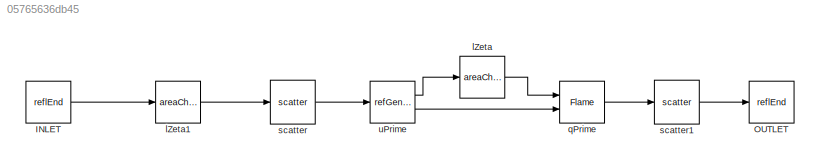
MODEL slx_05765636db45
KIND model
CONFIG AbsTol = auto
CONFIG EnableMultiTasking = on
CONFIG FixedStep = 1.0
CONFIG MaxStep = auto
CONFIG MinStep = auto
CONFIG RelTol = 1e-3
CONFIG SampleTimeConstraint = Unconstrained
CONFIG Solver = FixedStepDiscrete
CONFIG SolverName = FixedStepDiscrete
CONFIG StartTime = 0.0
CONFIG StopTime = 1.0
BLOCK [Reference] INLET  REF=taXlibrary/reflEnd
  AttributesFormatString = %<r>
  Ports = [0, 1]
  SourceBlock = taXlibrary/reflEnd
BLOCK [Reference] OUTLET  REF=taXlibrary/reflEnd
  AttributesFormatString = %<r>
  Ports = [1]
  SourceBlock = taXlibrary/reflEnd
BLOCK [Reference] lZeta  REF=taXlibrary/areaChange
  Ports = [1, 1]
  SourceBlock = taXlibrary/areaChange
BLOCK [Reference] lZeta1  REF=taXlibrary/areaChange
  Ports = [1, 1]
  SourceBlock = taXlibrary/areaChange
BLOCK [Reference] qPrime  REF=taXlibrary/Flame
  Ports = [2, 1]
  SourceBlock = taXlibrary/Flame
BLOCK [Reference] scatter  REF=taXlibrary/scatter
  Ports = [1, 1]
  SourceBlock = taXlibrary/scatter
BLOCK [Reference] scatter1  REF=taXlibrary/scatter
  Ports = [1, 1]
  SourceBlock = taXlibrary/scatter
BLOCK [Reference] uPrime  REF=taXlibrary/refGeneric
  AttributesFormatString = %<modelname>
  Ports = [1, 2]
  SourceBlock = taXlibrary/refGeneric
LINE INLET:1 -> lZeta1:1
LINE lZeta1:1 -> scatter:1
LINE lZeta:1 -> qPrime:1
LINE qPrime:1 -> scatter1:1
LINE scatter1:1 -> OUTLET:1
LINE scatter:1 -> uPrime:1
LINE uPrime:1 -> lZeta:1
LINE uPrime:2 -> qPrime:2
